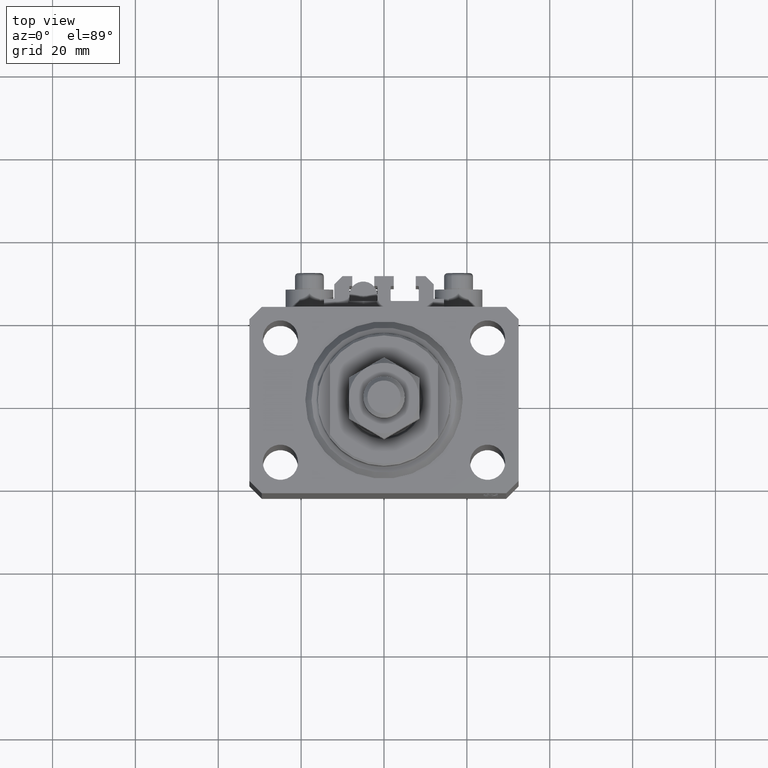
[diagram: clean part render]
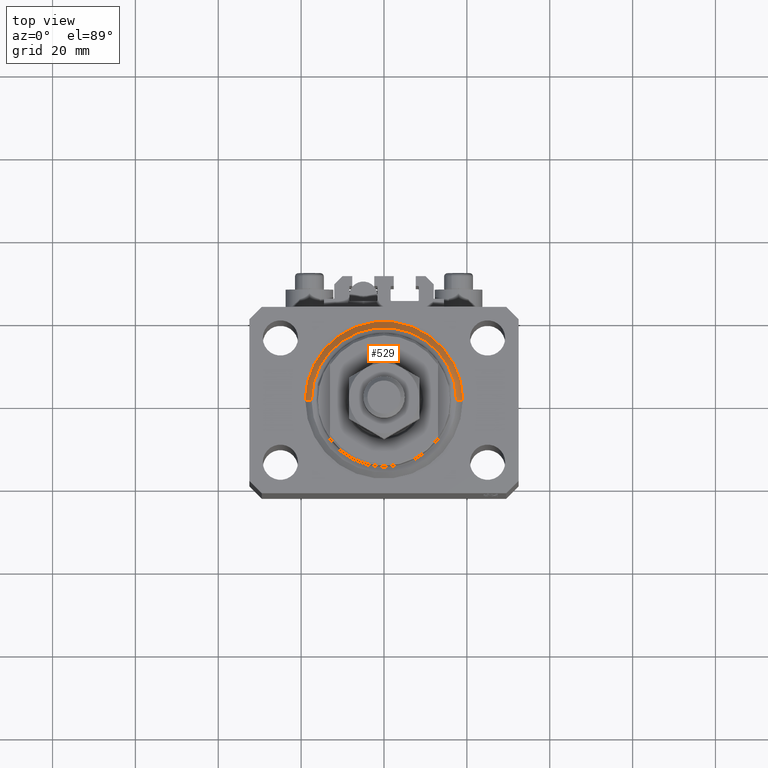
[diagram: same view with one face highlighted and labeled with its STEP entity id]
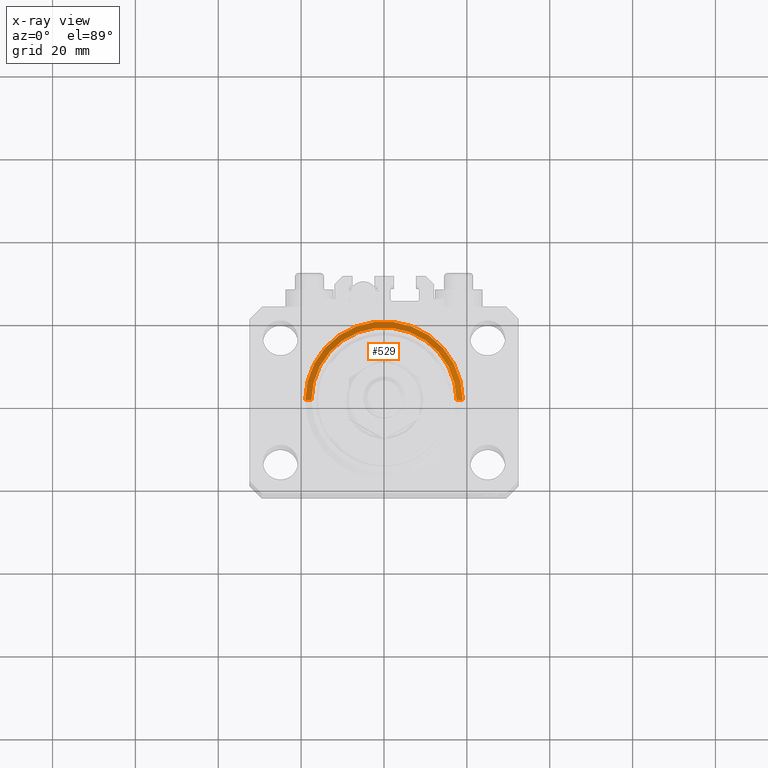
[diagram: x-ray of the same camera — body ghosted, the highlighted face saturated]
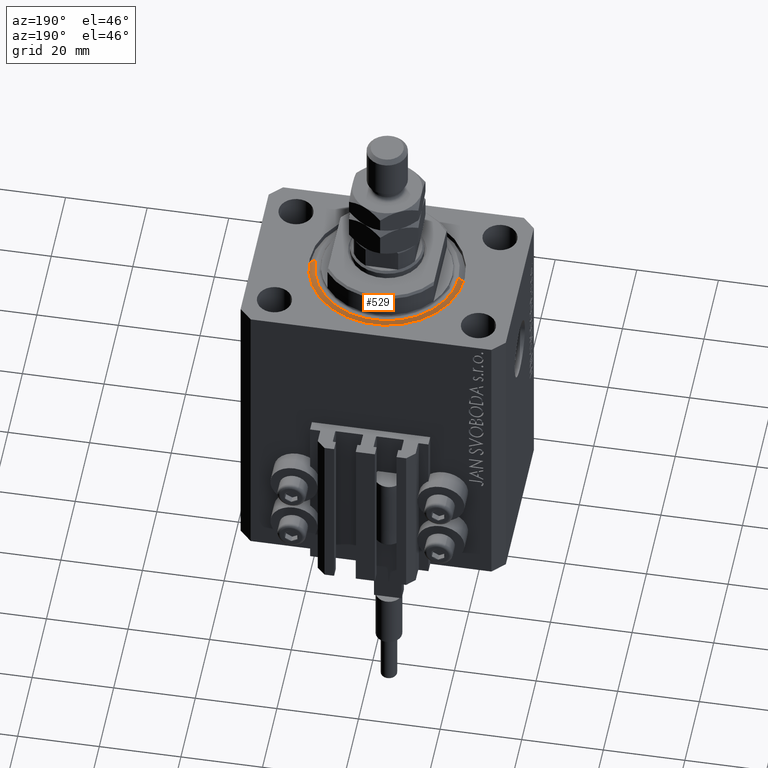
[diagram: same view with one face highlighted and labeled with its STEP entity id]
A machine part, top view. The second image highlights one B-rep face of the part: STEP entity #529.
The next image is the same camera in x-ray: the body ghosted, the highlighted face saturated — about 0% of this face is hidden behind the body in this view.
A second angle (auxiliary view) of the same face is appended — the face is thin or edge-on in the first view.
In plain terms, the highlighted conical surface has half-angle 45 deg.
Its self-contained STEP definition (entity closure, byte-faithful):
#529 = ADVANCED_FACE ( 'NONE', ( #28632 ), #13213, .T. ) ;
#1184 = CARTESIAN_POINT ( 'NONE',  ( 0.000000000000000000, 0.000000000000000000, 1.500000000000004885 ) ) ;
#1821 = ORIENTED_EDGE ( 'NONE', *, *, #12397, .F. ) ;
#8789 = VECTOR ( 'NONE', #10242, 1000.000000000000000 ) ;
#10242 = DIRECTION ( 'NONE',  ( -0.7071067811865483499, 8.659560562354943952E-17, 0.7071067811865467956 ) ) ;
#10334 = CIRCLE ( 'NONE', #44923, 17.49999999999999289 ) ;
#11556 = ORIENTED_EDGE ( 'NONE', *, *, #41377, .F. ) ;
#11919 = CARTESIAN_POINT ( 'NONE',  ( 19.00000000000000000, 0.000000000000000000, 1.500000000000004885 ) ) ;
#12397 = EDGE_CURVE ( 'NONE', #39123, #38550, #39114, .T. ) ;
#13213 = CONICAL_SURFACE ( 'NONE', #47803, 19.00000000000000000, 0.7853981633974492782 ) ;
#14407 = EDGE_CURVE ( 'NONE', #46253, #39123, #10334, .T. ) ;
#16056 = LINE ( 'NONE', #33170, #8789 ) ;
#16348 = EDGE_CURVE ( 'NONE', #46253, #44980, #16056, .T. ) ;
#16900 = CARTESIAN_POINT ( 'NONE',  ( -17.49999999999999289, 2.234980408443919215E-15, 0.000000000000000000 ) ) ;
#18423 = CIRCLE ( 'NONE', #24890, 19.00000000000000000 ) ;
#21067 = DIRECTION ( 'NONE',  ( 1.000000000000000000, 0.000000000000000000, 0.000000000000000000 ) ) ;
#21101 = DIRECTION ( 'NONE',  ( 1.000000000000000000, 0.000000000000000000, 0.000000000000000000 ) ) ;
#22983 = ORIENTED_EDGE ( 'NONE', *, *, #14407, .F. ) ;
#23905 = VECTOR ( 'NONE', #41897, 1000.000000000000000 ) ;
#24353 = DIRECTION ( 'NONE',  ( -0.000000000000000000, -0.000000000000000000, 1.000000000000000000 ) ) ;
#24876 = CARTESIAN_POINT ( 'NONE',  ( 0.000000000000000000, 0.000000000000000000, 0.000000000000000000 ) ) ;
#24890 = AXIS2_PLACEMENT_3D ( 'NONE', #38816, #46625, #46374 ) ;
#28632 = FACE_OUTER_BOUND ( 'NONE', #29471, .T. ) ;
#29471 = EDGE_LOOP ( 'NONE', ( #22983, #49436, #11556, #1821 ) ) ;
#30615 = CARTESIAN_POINT ( 'NONE',  ( 19.00000000000000000, 2.326828918379970970E-15, 1.500000000000004885 ) ) ;
#33170 = CARTESIAN_POINT ( 'NONE',  ( -19.00000000000000000, 2.326828918379970970E-15, 1.500000000000004885 ) ) ;
#34798 = CARTESIAN_POINT ( 'NONE',  ( 17.49999999999999289, 0.000000000000000000, 0.000000000000000000 ) ) ;
#38550 = VERTEX_POINT ( 'NONE', #30615 ) ;
#38816 = CARTESIAN_POINT ( 'NONE',  ( 0.000000000000000000, 0.000000000000000000, 1.500000000000004885 ) ) ;
#39114 = LINE ( 'NONE', #11919, #23905 ) ;
#39123 = VERTEX_POINT ( 'NONE', #34798 ) ;
#40260 = DIRECTION ( 'NONE',  ( -0.000000000000000000, -0.000000000000000000, -1.000000000000000000 ) ) ;
#41377 = EDGE_CURVE ( 'NONE', #38550, #44980, #18423, .T. ) ;
#41897 = DIRECTION ( 'NONE',  ( 0.7071067811865483499, 0.000000000000000000, 0.7071067811865467956 ) ) ;
#44923 = AXIS2_PLACEMENT_3D ( 'NONE', #24876, #40260, #21101 ) ;
#44980 = VERTEX_POINT ( 'NONE', #48969 ) ;
#46253 = VERTEX_POINT ( 'NONE', #16900 ) ;
#46374 = DIRECTION ( 'NONE',  ( 1.000000000000000000, 0.000000000000000000, 0.000000000000000000 ) ) ;
#46625 = DIRECTION ( 'NONE',  ( -0.000000000000000000, -0.000000000000000000, 1.000000000000000000 ) ) ;
#47803 = AXIS2_PLACEMENT_3D ( 'NONE', #1184, #24353, #21067 ) ;
#48969 = CARTESIAN_POINT ( 'NONE',  ( -19.00000000000000000, 0.000000000000000000, 1.500000000000004885 ) ) ;
#49436 = ORIENTED_EDGE ( 'NONE', *, *, #16348, .T. ) ;